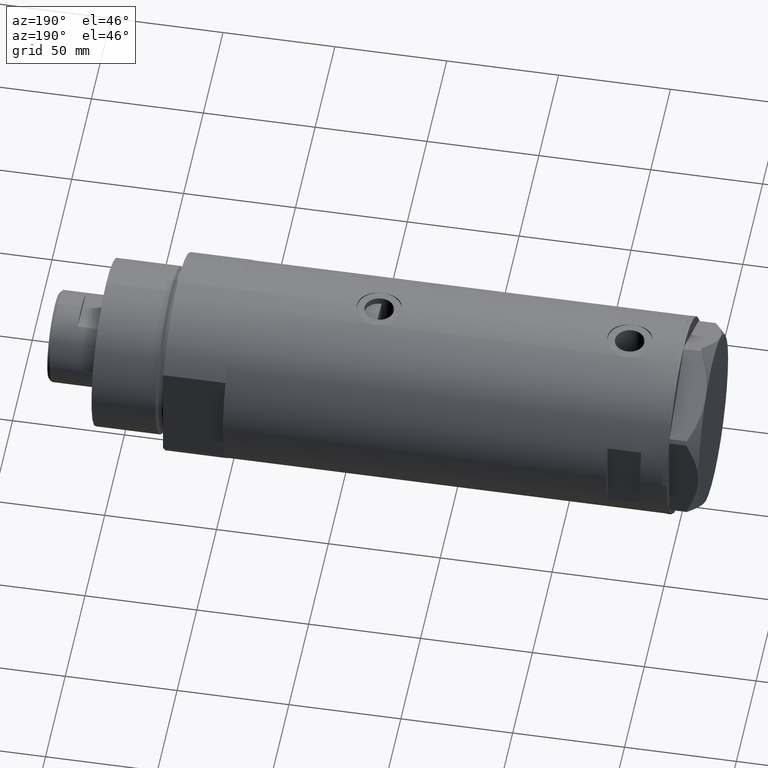
[diagram: clean part render]
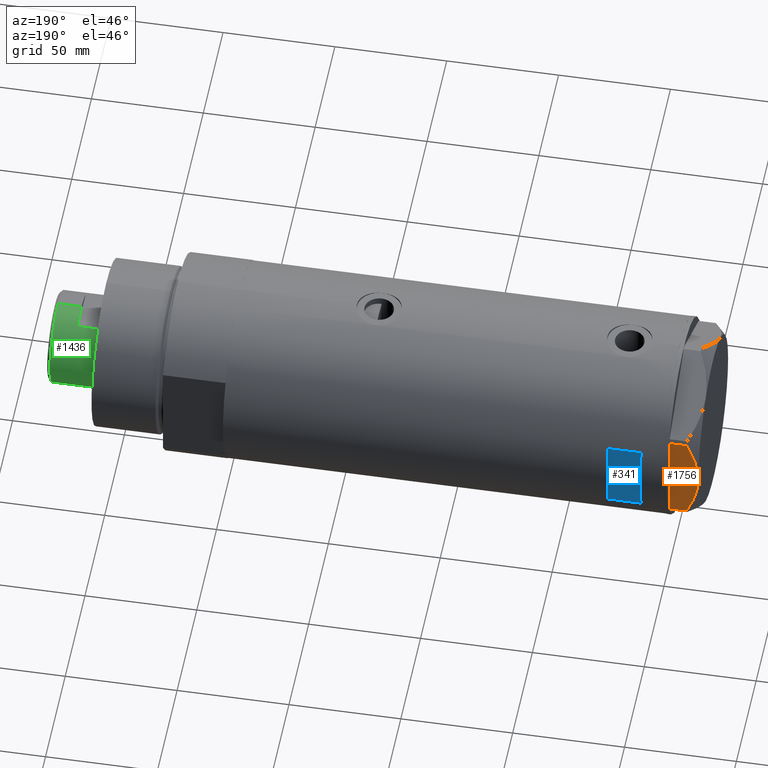
[diagram: same view with three faces highlighted in distinct colors, each labeled with its STEP entity id]
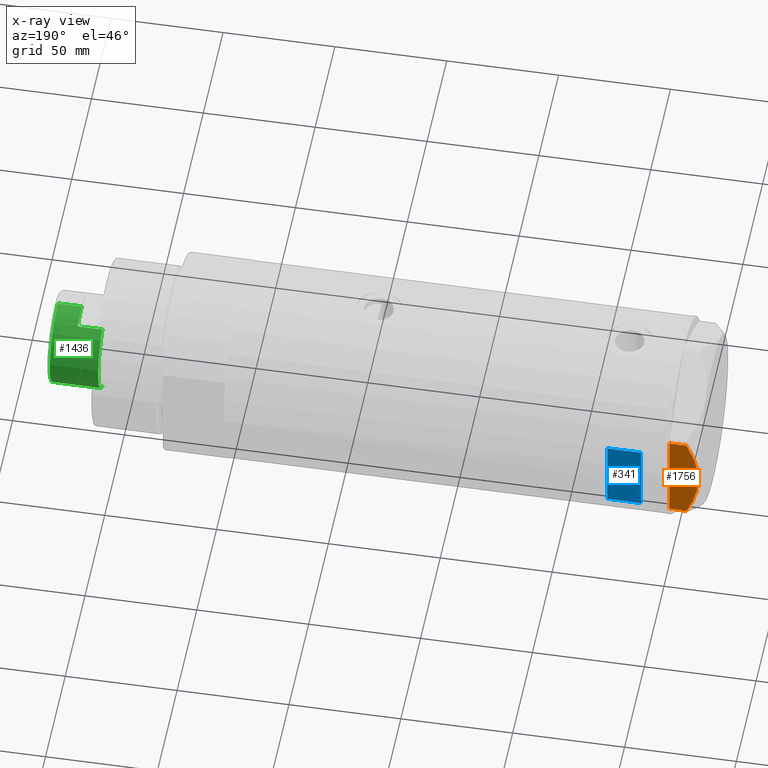
[diagram: x-ray of the same camera — body ghosted, the three highlighted faces saturated]
A machine part, auxiliary view with three faces highlighted in distinct colors.
The next image is the same camera in x-ray (body ghosted, the three faces saturated) — at least one of them is partly hidden behind the body in this view.
Their STEP definitions:

[orange] entity #1756 — the highlighted planar face has unit normal (0, -1, -0).
#2 = CARTESIAN_POINT ( 'NONE',  ( 37.75000000000002132, -11.46926194450820802, 11.30493988086502632 ) ) ;
#150 = LINE ( 'NONE', #2586, #3323 ) ;
#179 = CARTESIAN_POINT ( 'NONE',  ( 37.75000000000002132, -20.67497266190835958, 0.000000000000000000 ) ) ;
#342 = CARTESIAN_POINT ( 'NONE',  ( 37.75000000000000000, 20.67497266190835958, 7.709124142616976094 ) ) ;
#407 = CARTESIAN_POINT ( 'NONE',  ( 37.75000000000001421, -19.06473524669325315, 8.482612457517156201 ) ) ;
#417 = ORIENTED_EDGE ( 'NONE', *, *, #3118, .T. ) ;
#553 = DIRECTION ( 'NONE',  ( 0.000000000000000000, 0.000000000000000000, 1.000000000000000000 ) ) ;
#735 = B_SPLINE_CURVE_WITH_KNOTS ( 'NONE', 3,
 ( #2415, #407, #4216, #3842, #1412, #1028, #2, #4283, #2484, #2086 ),
 .UNSPECIFIED., .F., .F.,
 ( 4, 2, 2, 2, 4 ),
 ( 0.05601050456479946676, 0.06138217239161374711, 0.06406800630502089422, 0.06675384021842803439, 0.07749717587205659508 ),
 .UNSPECIFIED. ) ;
#852 = DIRECTION ( 'NONE',  ( -4.775569585389645902E-16, 1.000000000000000000, 0.000000000000000000 ) ) ;
#891 = VERTEX_POINT ( 'NONE', #2541 ) ;
#948 = ORIENTED_EDGE ( 'NONE', *, *, #2927, .F. ) ;
#1028 = CARTESIAN_POINT ( 'NONE',  ( 37.75000000000001421, -12.33018559404072256, 11.04557586999680296 ) ) ;
#1067 = VERTEX_POINT ( 'NONE', #179 ) ;
#1167 = CARTESIAN_POINT ( 'NONE',  ( 37.75000000000000711, 1.802777518484591547E-14, 13.00000000000000000 ) ) ;
#1173 = EDGE_CURVE ( 'NONE', #2377, #1067, #3526, .T. ) ;
#1191 = ORIENTED_EDGE ( 'NONE', *, *, #1173, .T. ) ;
#1375 = CARTESIAN_POINT ( 'NONE',  ( 37.75000000000000000, 7.161343005612795132, 12.36677985830370829 ) ) ;
#1400 = CARTESIAN_POINT ( 'NONE',  ( 37.75000000000000711, 4.503994958793054337, 12.74237531377021604 ) ) ;
#1412 = CARTESIAN_POINT ( 'NONE',  ( 37.75000000000002132, -14.04433099034386778, 10.48027127384610679 ) ) ;
#1459 = EDGE_CURVE ( 'NONE', #1067, #3780, #150, .T. ) ;
#1748 = CARTESIAN_POINT ( 'NONE',  ( 37.75000000000000711, 3.611424898442247233, 12.83826937481875596 ) ) ;
#1756 = ADVANCED_FACE ( 'NONE', ( #2073 ), #3825, .F. ) ;
#1785 = DIRECTION ( 'NONE',  ( 0.000000000000000000, 0.000000000000000000, -1.000000000000000000 ) ) ;
#1826 = CARTESIAN_POINT ( 'NONE',  ( 37.75000000000000711, 8.905753572404311313, 11.99914237172014353 ) ) ;
#1962 = B_SPLINE_CURVE_WITH_KNOTS ( 'NONE', 3,
 ( #1167, #4155, #2502, #1748, #1400, #1375, #1826, #3877, #2099, #3925, #2119, #4298, #3499, #342 ),
 .UNSPECIFIED., .F., .F.,
 ( 4, 2, 2, 2, 2, 2, 4 ),
 ( 0.07749717587205659508, 0.08017617902235897598, 0.08285518217266137075, 0.08821318847326614643, 0.09357119477387092210, 0.09625019792417330300, 0.09892920107447569777 ),
 .UNSPECIFIED. ) ;
#1989 = EDGE_CURVE ( 'NONE', #891, #2848, #1962, .T. ) ;
#2038 = EDGE_LOOP ( 'NONE', ( #948, #1191, #4467, #417, #2949 ) ) ;
#2073 = FACE_OUTER_BOUND ( 'NONE', #2038, .T. ) ;
#2086 = CARTESIAN_POINT ( 'NONE',  ( 37.75000000000000711, 1.802777518484591547E-14, 13.00000000000000000 ) ) ;
#2099 = CARTESIAN_POINT ( 'NONE',  ( 37.75000000000000000, 14.04742653794396823, 10.50092616350622166 ) ) ;
#2119 = CARTESIAN_POINT ( 'NONE',  ( 37.75000000000000000, 17.40390235304479560, 9.187919079516760235 ) ) ;
#2281 = CARTESIAN_POINT ( 'NONE',  ( 37.75000000000000000, 20.67497266190835958, 13.00000000000000000 ) ) ;
#2294 = VECTOR ( 'NONE', #553, 1000.000000000000000 ) ;
#2377 = VERTEX_POINT ( 'NONE', #4133 ) ;
#2399 = CARTESIAN_POINT ( 'NONE',  ( 37.75000000000000000, 20.67497266190835958, 0.000000000000000000 ) ) ;
#2415 = CARTESIAN_POINT ( 'NONE',  ( 37.75000000000002132, -20.67497266190837024, 7.709124142616982311 ) ) ;
#2484 = CARTESIAN_POINT ( 'NONE',  ( 37.75000000000000000, -3.615248338761618552, 12.99999999999998934 ) ) ;
#2502 = CARTESIAN_POINT ( 'NONE',  ( 37.75000000000000000, 1.811728074765807994, 12.96720910498919466 ) ) ;
#2541 = CARTESIAN_POINT ( 'NONE',  ( 37.75000000000000711, 1.802777518484591547E-14, 13.00000000000000000 ) ) ;
#2586 = CARTESIAN_POINT ( 'NONE',  ( 37.75000000000002132, -21.79497266190837124, 0.000000000000000000 ) ) ;
#2848 = VERTEX_POINT ( 'NONE', #3866 ) ;
#2857 = CARTESIAN_POINT ( 'NONE',  ( 37.75000000000002132, -20.67497266190835958, 13.00000000000000000 ) ) ;
#2927 = EDGE_CURVE ( 'NONE', #2377, #891, #735, .T. ) ;
#2949 = ORIENTED_EDGE ( 'NONE', *, *, #1989, .F. ) ;
#3118 = EDGE_CURVE ( 'NONE', #3780, #2848, #3425, .T. ) ;
#3323 = VECTOR ( 'NONE', #852, 1000.000000000000000 ) ;
#3372 = DIRECTION ( 'NONE',  ( -1.000000000000000000, -4.775569585389645902E-16, 0.000000000000000000 ) ) ;
#3421 = DIRECTION ( 'NONE',  ( 4.775569585389645902E-16, -1.000000000000000000, 0.000000000000000000 ) ) ;
#3425 = LINE ( 'NONE', #2281, #2294 ) ;
#3499 = CARTESIAN_POINT ( 'NONE',  ( 37.75000000000000000, 19.86857906850807964, 8.096480699986591034 ) ) ;
#3526 = LINE ( 'NONE', #2857, #4213 ) ;
#3766 = CARTESIAN_POINT ( 'NONE',  ( 37.75000000000002132, -21.79497266190837124, 13.00000000000000000 ) ) ;
#3780 = VERTEX_POINT ( 'NONE', #2399 ) ;
#3825 = PLANE ( 'NONE',  #3998 ) ;
#3842 = CARTESIAN_POINT ( 'NONE',  ( 37.75000000000001421, -14.89874562435959504, 10.17375260246623547 ) ) ;
#3866 = CARTESIAN_POINT ( 'NONE',  ( 37.75000000000000000, 20.67497266190835958, 7.709124142616976094 ) ) ;
#3877 = CARTESIAN_POINT ( 'NONE',  ( 37.75000000000000711, 12.34877760086738441, 11.06613894200179260 ) ) ;
#3925 = CARTESIAN_POINT ( 'NONE',  ( 37.75000000000000711, 16.56731140591521978, 9.531835068628826235 ) ) ;
#3998 = AXIS2_PLACEMENT_3D ( 'NONE', #3766, #3372, #3421 ) ;
#4133 = CARTESIAN_POINT ( 'NONE',  ( 37.75000000000002132, -20.67497266190837024, 7.709124142616982311 ) ) ;
#4155 = CARTESIAN_POINT ( 'NONE',  ( 37.75000000000000711, 0.9015134592203699615, 12.99999999999999112 ) ) ;
#4213 = VECTOR ( 'NONE', #1785, 1000.000000000000000 ) ;
#4216 = CARTESIAN_POINT ( 'NONE',  ( 37.75000000000002132, -17.42329546264822682, 9.202188366597432889 ) ) ;
#4283 = CARTESIAN_POINT ( 'NONE',  ( 37.75000000000000711, -7.143641079404811300, 12.47474846747315347 ) ) ;
#4298 = CARTESIAN_POINT ( 'NONE',  ( 37.75000000000000000, 19.05362936076134162, 8.470554105526112210 ) ) ;
#4467 = ORIENTED_EDGE ( 'NONE', *, *, #1459, .T. ) ;

[blue] entity #341 — the highlighted planar face has unit normal (0, -1, -0).
#71 = LINE ( 'NONE', #406, #516 ) ;
#207 = ORIENTED_EDGE ( 'NONE', *, *, #956, .T. ) ;
#211 = CARTESIAN_POINT ( 'NONE',  ( 15.96871942267132027, 40.99999999999999289, 73.20000000000000284 ) ) ;
#219 = EDGE_CURVE ( 'NONE', #3632, #4076, #2719, .T. ) ;
#294 = AXIS2_PLACEMENT_3D ( 'NONE', #3923, #4202, #2802 ) ;
#341 = ADVANCED_FACE ( 'NONE', ( #2117 ), #2405, .F. ) ;
#406 = CARTESIAN_POINT ( 'NONE',  ( 15.96871942267132027, 40.99999999999999289, -98.20000000000000284 ) ) ;
#516 = VECTOR ( 'NONE', #1430, 1000.000000000000000 ) ;
#896 = EDGE_LOOP ( 'NONE', ( #207, #3568, #1926, #4296 ) ) ;
#956 = EDGE_CURVE ( 'NONE', #4076, #4038, #71, .T. ) ;
#1147 = CARTESIAN_POINT ( 'NONE',  ( -44.00000000000000000, 40.99999999999999289, 73.20000000000000284 ) ) ;
#1215 = DIRECTION ( 'NONE',  ( 0.000000000000000000, 0.000000000000000000, 1.000000000000000000 ) ) ;
#1270 = CARTESIAN_POINT ( 'NONE',  ( -44.00000000000000000, 40.99999999999999289, 88.20000000000000284 ) ) ;
#1382 = CARTESIAN_POINT ( 'NONE',  ( -15.96871942267132027, 40.99999999999999289, 73.20000000000000284 ) ) ;
#1430 = DIRECTION ( 'NONE',  ( -0.000000000000000000, -0.000000000000000000, -1.000000000000000000 ) ) ;
#1926 = ORIENTED_EDGE ( 'NONE', *, *, #3050, .T. ) ;
#2117 = FACE_OUTER_BOUND ( 'NONE', #896, .T. ) ;
#2163 = CARTESIAN_POINT ( 'NONE',  ( -15.96871942267132027, 40.99999999999999289, -98.20000000000000284 ) ) ;
#2405 = PLANE ( 'NONE',  #294 ) ;
#2675 = DIRECTION ( 'NONE',  ( 1.000000000000000000, -0.000000000000000000, -0.000000000000000000 ) ) ;
#2719 = LINE ( 'NONE', #1270, #2732 ) ;
#2732 = VECTOR ( 'NONE', #2675, 1000.000000000000000 ) ;
#2802 = DIRECTION ( 'NONE',  ( 0.000000000000000000, 0.000000000000000000, -1.000000000000000000 ) ) ;
#2807 = VECTOR ( 'NONE', #1215, 1000.000000000000000 ) ;
#2920 = LINE ( 'NONE', #1147, #3795 ) ;
#3050 = EDGE_CURVE ( 'NONE', #4414, #3632, #4331, .T. ) ;
#3568 = ORIENTED_EDGE ( 'NONE', *, *, #4058, .F. ) ;
#3632 = VERTEX_POINT ( 'NONE', #3948 ) ;
#3683 = CARTESIAN_POINT ( 'NONE',  ( 15.96871942267132027, 40.99999999999999289, 88.20000000000000284 ) ) ;
#3795 = VECTOR ( 'NONE', #4011, 1000.000000000000000 ) ;
#3923 = CARTESIAN_POINT ( 'NONE',  ( -44.00000000000000000, 40.99999999999999289, 88.20000000000000284 ) ) ;
#3948 = CARTESIAN_POINT ( 'NONE',  ( -15.96871942267132027, 40.99999999999999289, 88.20000000000000284 ) ) ;
#4011 = DIRECTION ( 'NONE',  ( 1.000000000000000000, -0.000000000000000000, -0.000000000000000000 ) ) ;
#4038 = VERTEX_POINT ( 'NONE', #211 ) ;
#4058 = EDGE_CURVE ( 'NONE', #4414, #4038, #2920, .T. ) ;
#4076 = VERTEX_POINT ( 'NONE', #3683 ) ;
#4202 = DIRECTION ( 'NONE',  ( 0.000000000000000000, -1.000000000000000000, -0.000000000000000000 ) ) ;
#4296 = ORIENTED_EDGE ( 'NONE', *, *, #219, .T. ) ;
#4331 = LINE ( 'NONE', #2163, #2807 ) ;
#4414 = VERTEX_POINT ( 'NONE', #1382 ) ;

[green] entity #1436 — the highlighted cylindrical surface (partial cylindrical patch) has radius 20.5 mm, axis along (-1, -0, 0).
#19 = AXIS2_PLACEMENT_3D ( 'NONE', #4466, #3746, #2388 ) ;
#74 = CARTESIAN_POINT ( 'NONE',  ( -20.50000000000000355, 0.000000000000000000, 241.3000000000000114 ) ) ;
#77 = VERTEX_POINT ( 'NONE', #974 ) ;
#120 = DIRECTION ( 'NONE',  ( -0.000000000000000000, -0.000000000000000000, -1.000000000000000000 ) ) ;
#124 = ORIENTED_EDGE ( 'NONE', *, *, #807, .F. ) ;
#325 = VERTEX_POINT ( 'NONE', #717 ) ;
#389 = DIRECTION ( 'NONE',  ( 0.000000000000000000, 0.000000000000000000, 1.000000000000000000 ) ) ;
#401 = CARTESIAN_POINT ( 'NONE',  ( 20.50000000000000355, 2.510525938252074481E-15, 251.9000000000001194 ) ) ;
#409 = CARTESIAN_POINT ( 'NONE',  ( 17.97852886083842705, 9.849999999999997868, 230.3000000000000114 ) ) ;
#526 = VECTOR ( 'NONE', #2170, 1000.000000000000000 ) ;
#567 = ORIENTED_EDGE ( 'NONE', *, *, #794, .T. ) ;
#575 = ORIENTED_EDGE ( 'NONE', *, *, #2391, .T. ) ;
#621 = CARTESIAN_POINT ( 'NONE',  ( 0.000000000000000000, 0.000000000000000000, 251.9000000000001194 ) ) ;
#665 = LINE ( 'NONE', #3232, #526 ) ;
#668 = EDGE_CURVE ( 'NONE', #3939, #3239, #3834, .T. ) ;
#717 = CARTESIAN_POINT ( 'NONE',  ( 17.97852886083842705, 9.849999999999997868, 241.3000000000000114 ) ) ;
#756 = DIRECTION ( 'NONE',  ( 1.000000000000000000, 0.000000000000000000, 0.000000000000000000 ) ) ;
#776 = CYLINDRICAL_SURFACE ( 'NONE', #3098, 20.50000000000000355 ) ;
#794 = EDGE_CURVE ( 'NONE', #77, #325, #1829, .T. ) ;
#807 = EDGE_CURVE ( 'NONE', #1341, #3239, #979, .T. ) ;
#974 = CARTESIAN_POINT ( 'NONE',  ( 20.50000000000000000, 2.510525938252074481E-15, 241.3000000000000114 ) ) ;
#979 = LINE ( 'NONE', #4140, #2579 ) ;
#1166 = FACE_OUTER_BOUND ( 'NONE', #2253, .T. ) ;
#1200 = CIRCLE ( 'NONE', #2383, 20.50000000000000355 ) ;
#1299 = ORIENTED_EDGE ( 'NONE', *, *, #668, .T. ) ;
#1341 = VERTEX_POINT ( 'NONE', #4179 ) ;
#1349 = DIRECTION ( 'NONE',  ( 0.000000000000000000, 0.000000000000000000, -1.000000000000000000 ) ) ;
#1421 = EDGE_CURVE ( 'NONE', #1341, #2504, #4144, .T. ) ;
#1436 = ADVANCED_FACE ( 'NONE', ( #1166 ), #776, .T. ) ;
#1453 = DIRECTION ( 'NONE',  ( 0.000000000000000000, 0.000000000000000000, 1.000000000000000000 ) ) ;
#1621 = EDGE_CURVE ( 'NONE', #4431, #77, #3299, .T. ) ;
#1787 = CARTESIAN_POINT ( 'NONE',  ( -20.50000000000000355, 0.000000000000000000, 251.9000000000001194 ) ) ;
#1829 = CIRCLE ( 'NONE', #19, 20.50000000000000000 ) ;
#1836 = DIRECTION ( 'NONE',  ( -1.000000000000000000, 0.000000000000000000, 0.000000000000000000 ) ) ;
#2078 = DIRECTION ( 'NONE',  ( 1.000000000000000000, 0.000000000000000000, 0.000000000000000000 ) ) ;
#2122 = AXIS2_PLACEMENT_3D ( 'NONE', #3936, #1453, #756 ) ;
#2170 = DIRECTION ( 'NONE',  ( -0.000000000000000000, -0.000000000000000000, -1.000000000000000000 ) ) ;
#2203 = CARTESIAN_POINT ( 'NONE',  ( 0.000000000000000000, 0.000000000000000000, 241.3000000000000114 ) ) ;
#2253 = EDGE_LOOP ( 'NONE', ( #2625, #4426, #567, #575, #1299, #124, #3862, #3704 ) ) ;
#2351 = AXIS2_PLACEMENT_3D ( 'NONE', #3550, #389, #2078 ) ;
#2360 = VECTOR ( 'NONE', #4373, 1000.000000000000000 ) ;
#2383 = AXIS2_PLACEMENT_3D ( 'NONE', #621, #1349, #4177 ) ;
#2388 = DIRECTION ( 'NONE',  ( 1.000000000000000000, 0.000000000000000000, 0.000000000000000000 ) ) ;
#2391 = EDGE_CURVE ( 'NONE', #325, #3939, #665, .T. ) ;
#2504 = VERTEX_POINT ( 'NONE', #2943 ) ;
#2579 = VECTOR ( 'NONE', #4116, 1000.000000000000000 ) ;
#2625 = ORIENTED_EDGE ( 'NONE', *, *, #3734, .T. ) ;
#2809 = CARTESIAN_POINT ( 'NONE',  ( -17.97852886083842705, 9.849999999999965894, 230.3000000000000114 ) ) ;
#2943 = CARTESIAN_POINT ( 'NONE',  ( -20.50000000000000000, 0.000000000000000000, 241.3000000000000114 ) ) ;
#2953 = CARTESIAN_POINT ( 'NONE',  ( 20.50000000000000355, 2.510525938252074481E-15, 241.3000000000000114 ) ) ;
#3098 = AXIS2_PLACEMENT_3D ( 'NONE', #2203, #120, #1836 ) ;
#3232 = CARTESIAN_POINT ( 'NONE',  ( 17.97852886083842705, 9.849999999999997868, 241.3000000000000114 ) ) ;
#3239 = VERTEX_POINT ( 'NONE', #2809 ) ;
#3299 = LINE ( 'NONE', #2953, #2360 ) ;
#3376 = VERTEX_POINT ( 'NONE', #1787 ) ;
#3428 = VECTOR ( 'NONE', #3940, 1000.000000000000000 ) ;
#3550 = CARTESIAN_POINT ( 'NONE',  ( 0.000000000000000000, 0.000000000000000000, 230.3000000000000114 ) ) ;
#3569 = LINE ( 'NONE', #74, #3428 ) ;
#3704 = ORIENTED_EDGE ( 'NONE', *, *, #3967, .F. ) ;
#3734 = EDGE_CURVE ( 'NONE', #3376, #4431, #1200, .T. ) ;
#3746 = DIRECTION ( 'NONE',  ( 0.000000000000000000, 0.000000000000000000, 1.000000000000000000 ) ) ;
#3834 = CIRCLE ( 'NONE', #2351, 20.49999999999998934 ) ;
#3862 = ORIENTED_EDGE ( 'NONE', *, *, #1421, .T. ) ;
#3936 = CARTESIAN_POINT ( 'NONE',  ( 0.000000000000000000, 0.000000000000000000, 241.3000000000000114 ) ) ;
#3939 = VERTEX_POINT ( 'NONE', #409 ) ;
#3940 = DIRECTION ( 'NONE',  ( -0.000000000000000000, -0.000000000000000000, -1.000000000000000000 ) ) ;
#3967 = EDGE_CURVE ( 'NONE', #3376, #2504, #3569, .T. ) ;
#4116 = DIRECTION ( 'NONE',  ( -0.000000000000000000, -0.000000000000000000, -1.000000000000000000 ) ) ;
#4140 = CARTESIAN_POINT ( 'NONE',  ( -17.97852886083842705, 9.849999999999997868, 241.3000000000000114 ) ) ;
#4144 = CIRCLE ( 'NONE', #2122, 20.50000000000000000 ) ;
#4177 = DIRECTION ( 'NONE',  ( 1.000000000000000000, 0.000000000000000000, 0.000000000000000000 ) ) ;
#4179 = CARTESIAN_POINT ( 'NONE',  ( -17.97852886083842705, 9.849999999999997868, 241.3000000000000114 ) ) ;
#4373 = DIRECTION ( 'NONE',  ( -0.000000000000000000, -0.000000000000000000, -1.000000000000000000 ) ) ;
#4426 = ORIENTED_EDGE ( 'NONE', *, *, #1621, .T. ) ;
#4431 = VERTEX_POINT ( 'NONE', #401 ) ;
#4466 = CARTESIAN_POINT ( 'NONE',  ( 0.000000000000000000, 0.000000000000000000, 241.3000000000000114 ) ) ;